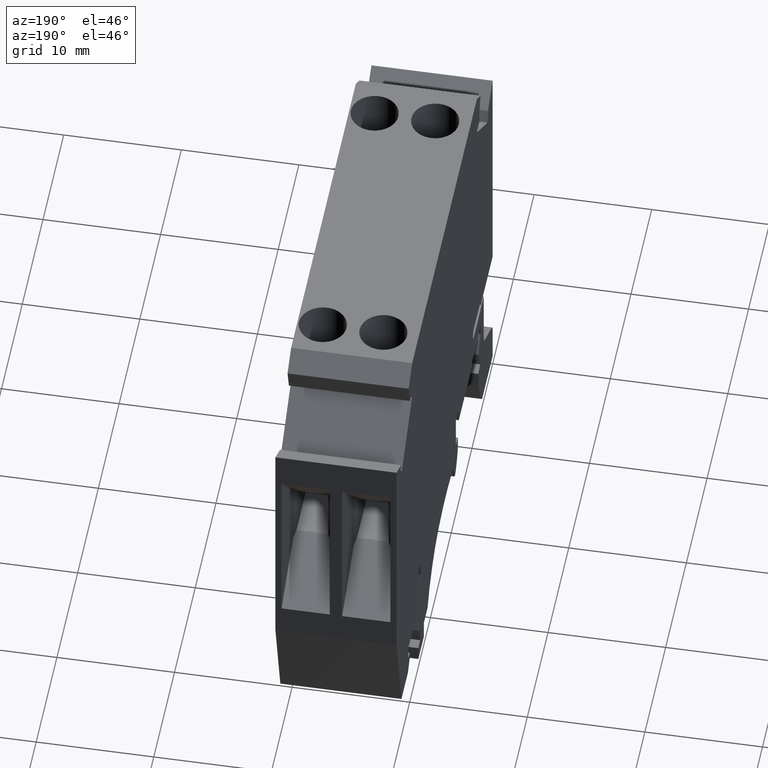
[diagram: clean part render]
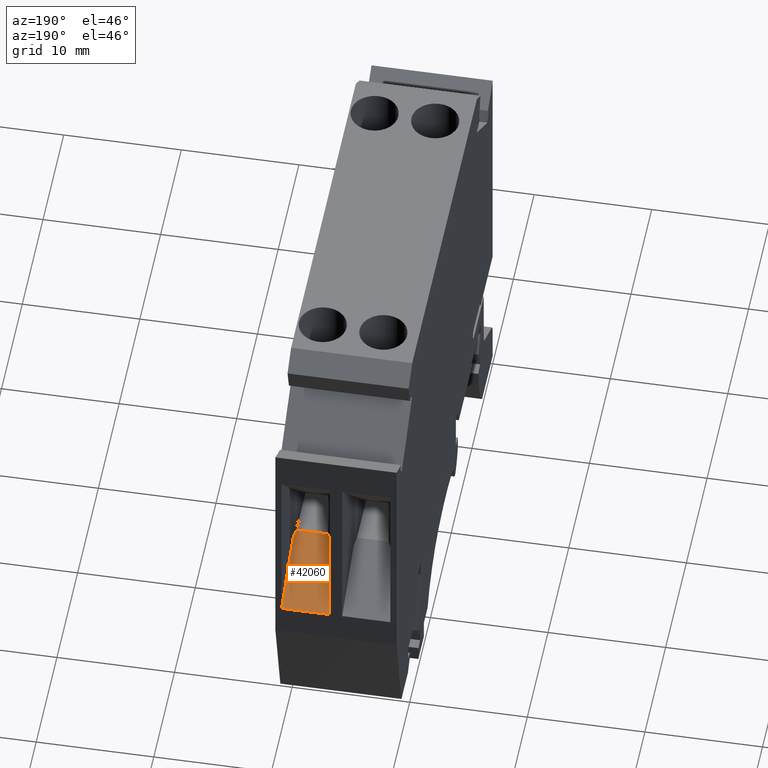
[diagram: same view with one face highlighted and labeled with its STEP entity id]
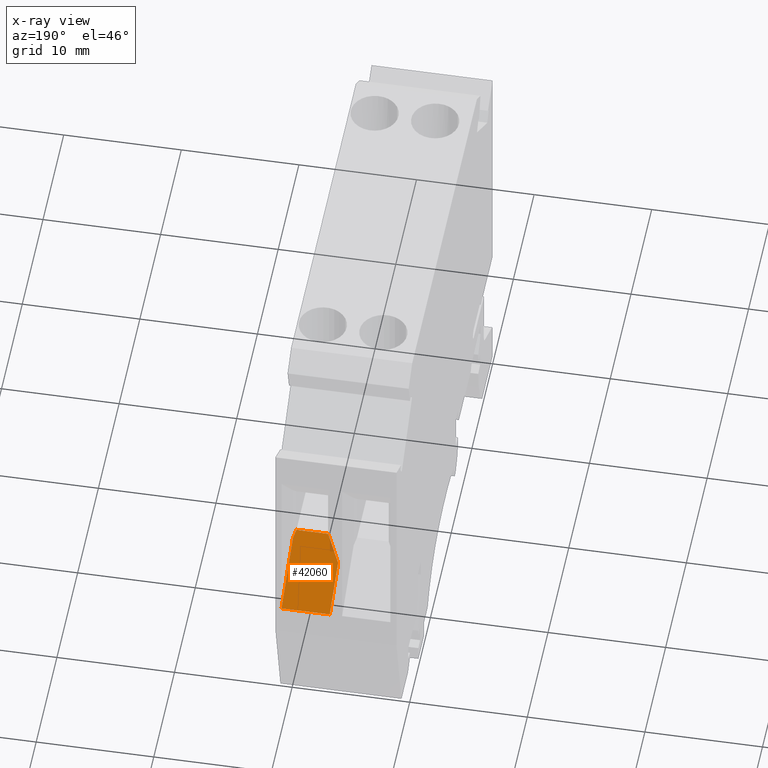
[diagram: x-ray of the same camera — body ghosted, the highlighted face saturated]
A machine part, auxiliary view. The second image highlights one B-rep face of the part: STEP entity #42060.
The next image is the same camera in x-ray: the body ghosted, the highlighted face saturated — about 1% of this face is hidden behind the body in this view.
In plain terms, the highlighted planar face has unit normal (-0, 0.4601, 0.8879).
Its self-contained STEP definition (entity closure, byte-faithful):
#34360=CARTESIAN_POINT('',(1.49790146619231,19.3295237515583,5.675));
#34370=VERTEX_POINT('',#34360);
#34520=CARTESIAN_POINT('',(1.49790146619231,19.3295237515583,9.775));
#34530=VERTEX_POINT('',#34520);
#34560=CARTESIAN_POINT('',(1.49790146619231,19.3295237515583,10.3));
#34570=DIRECTION('',(0.,0.,-1.));
#34580=VECTOR('',#34570,1.);
#34590=LINE('',#34560,#34580);
#34600=EDGE_CURVE('',#34530,#34370,#34590,.T.);
#40920=CARTESIAN_POINT('',(-4.67709853380776,22.5295237515583,
9.60000000000001));
#40930=VERTEX_POINT('',#40920);
#41280=CARTESIAN_POINT('',(-4.02565782276799,22.1919350430033,
9.77500000000001));
#41290=VERTEX_POINT('',#41280);
#41340=CARTESIAN_POINT('',(13.4527094661923,13.1343196058094,
14.4703072224885));
#41350=DIRECTION('',(0.863637887535789,-0.447553237265506,
0.232003661664824));
#41360=VECTOR('',#41350,1.);
#41370=LINE('',#41340,#41360);
#41380=EDGE_CURVE('',#40930,#41290,#41370,.T.);
#41550=CARTESIAN_POINT('',(13.4527094661923,13.1343196058094,9.775));
#41560=DIRECTION('',(0.887863315807394,-0.460107305357674,0.));
#41570=VECTOR('',#41560,1.);
#41580=LINE('',#41550,#41570);
#41590=EDGE_CURVE('',#41290,#34530,#41580,.T.);
#41740=CARTESIAN_POINT('',(-4.67709853380776,22.5295237515583,6.9));
#41750=DIRECTION('',(0.460107305357674,0.887863315807394,0.));
#41760=DIRECTION('',(0.887863315807394,-0.460107305357674,0.));
#41770=AXIS2_PLACEMENT_3D('',#41740,#41750,#41760);
#41780=PLANE('',#41770);
#41790=ORIENTED_EDGE('',*,*,#41380,.T.);
#41800=CARTESIAN_POINT('',(-4.67709853380776,22.5295237515583,10.3));
#41810=DIRECTION('',(0.,0.,1.));
#41820=VECTOR('',#41810,1.);
#41830=LINE('',#41800,#41820);
#41840=CARTESIAN_POINT('',(-4.67709853380776,22.5295237515583,6.9));
#41850=VERTEX_POINT('',#41840);
#41860=EDGE_CURVE('',#41850,#40930,#41830,.T.);
#41870=ORIENTED_EDGE('',*,*,#41860,.T.);
#41880=CARTESIAN_POINT('',(13.4527094661923,13.1343196058094,
-3.56724952915626));
#41890=DIRECTION('',(0.790104408757777,-0.409446819113338,
-0.456166993084213));
#41900=VECTOR('',#41890,1.);
#41910=LINE('',#41880,#41900);
#41920=CARTESIAN_POINT('',(-2.55533629453588,21.4299870445672,5.675));
#41930=VERTEX_POINT('',#41920);
#41940=EDGE_CURVE('',#41850,#41930,#41910,.T.);
#41950=ORIENTED_EDGE('',*,*,#41940,.F.);
#41960=CARTESIAN_POINT('',(13.4527094661923,13.1343196058094,5.675));
#41970=DIRECTION('',(-0.887863315807394,0.460107305357674,0.));
#41980=VECTOR('',#41970,1.);
#41990=LINE('',#41960,#41980);
#42000=EDGE_CURVE('',#34370,#41930,#41990,.T.);
#42010=ORIENTED_EDGE('',*,*,#42000,.T.);
#42020=ORIENTED_EDGE('',*,*,#34600,.T.);
#42030=ORIENTED_EDGE('',*,*,#41590,.T.);
#42040=EDGE_LOOP('',(#42030,#42020,#42010,#41950,#41870,#41790));
#42050=FACE_OUTER_BOUND('',#42040,.T.);
#42060=ADVANCED_FACE('',(#42050),#41780,.T.);